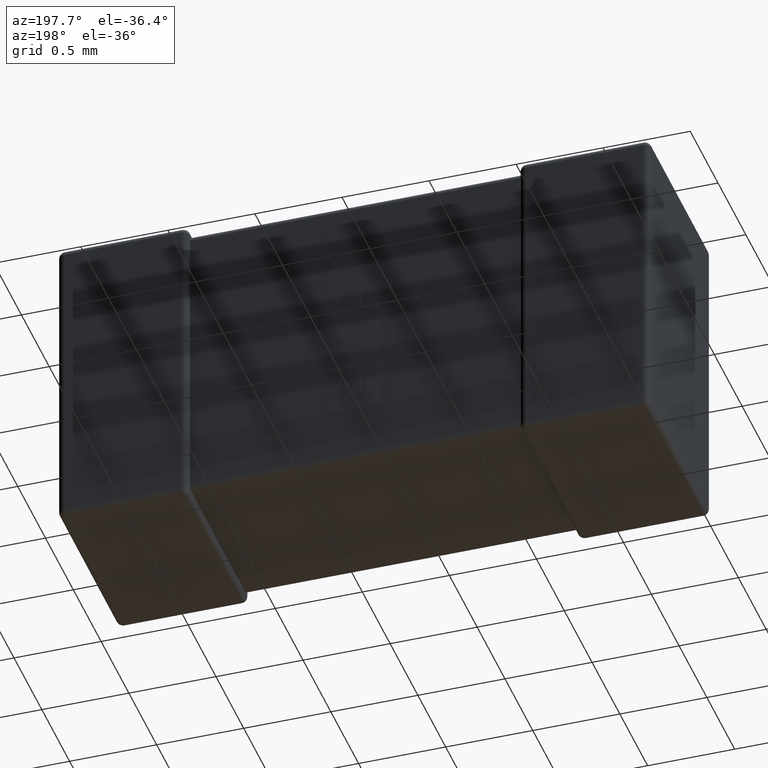
[diagram: clean part render]
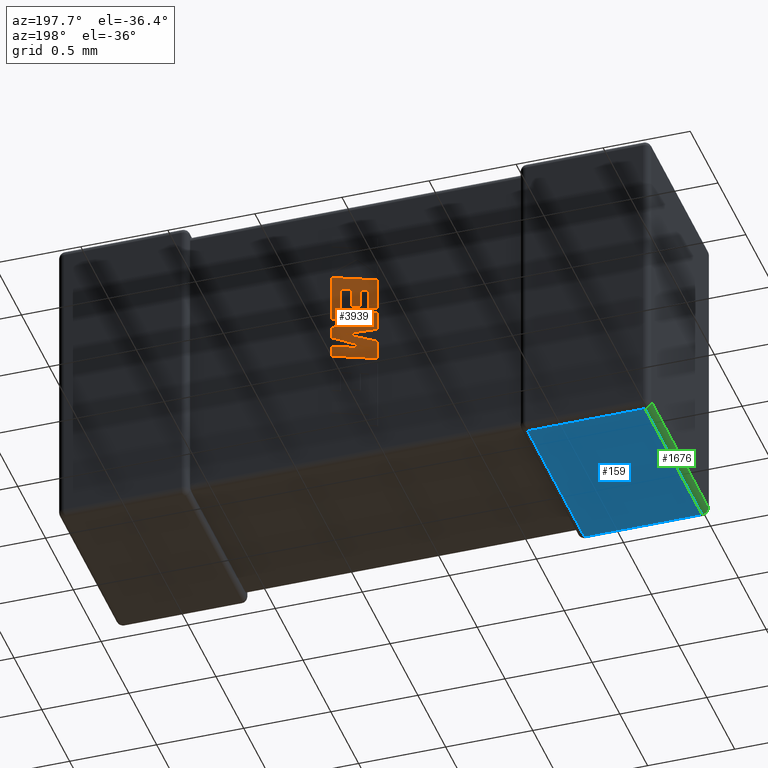
[diagram: same view with three faces highlighted in distinct colors, each labeled with its STEP entity id]
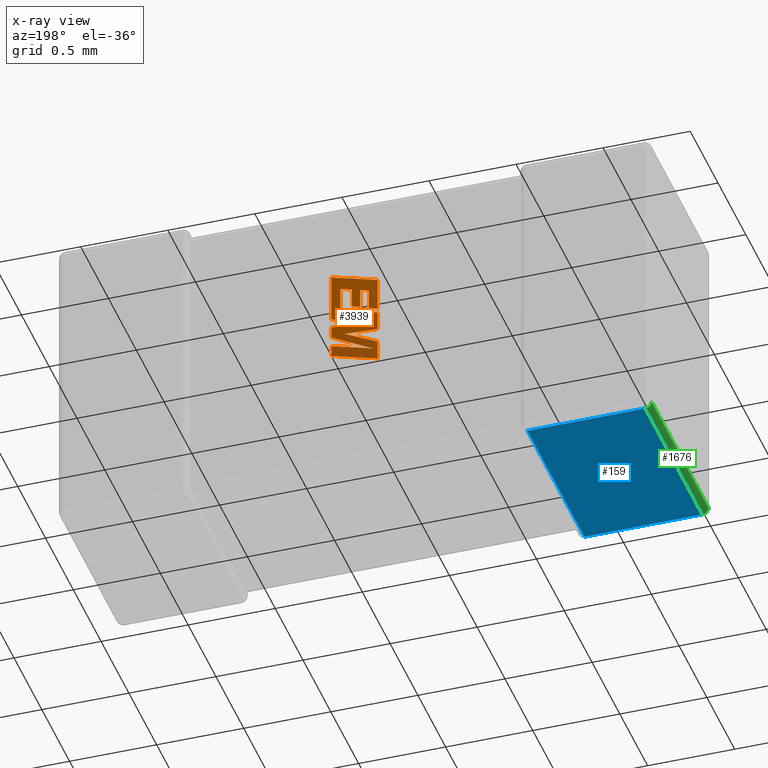
[diagram: x-ray of the same camera — body ghosted, the three highlighted faces saturated]
A machine part, auxiliary view with three faces highlighted in distinct colors.
The next image is the same camera in x-ray (body ghosted, the three faces saturated) — at least one of them is partly hidden behind the body in this view.
Their STEP definitions:

[orange] entity #3939 — the highlighted planar face has unit normal (0, -1, 0).
#14 = CARTESIAN_POINT ( 'NONE',  ( 1.719887564039056294, 1.067560000000000064, -0.7311922197814223479 ) ) ;
#16 = DIRECTION ( 'NONE',  ( -0.9611638845408969622, 0.000000000000000000, -0.2759782365590690012 ) ) ;
#20 = EDGE_CURVE ( 'NONE', #358, #1426, #2154, .T. ) ;
#45 = VECTOR ( 'NONE', #3267, 1000.000000000000000 ) ;
#165 = DIRECTION ( 'NONE',  ( 0.000000000000000000, 0.000000000000000000, 1.000000000000000000 ) ) ;
#175 = ORIENTED_EDGE ( 'NONE', *, *, #2184, .T. ) ;
#211 = VERTEX_POINT ( 'NONE', #1473 ) ;
#218 = ORIENTED_EDGE ( 'NONE', *, *, #2321, .T. ) ;
#226 = DIRECTION ( 'NONE',  ( 0.9610029908221285888, 0.000000000000000000, 0.2765379750249931656 ) ) ;
#265 = CARTESIAN_POINT ( 'NONE',  ( 0.06016339829042452458, 1.067560000000000064, 0.004072901265455560610 ) ) ;
#288 = VERTEX_POINT ( 'NONE', #2085 ) ;
#333 = ORIENTED_EDGE ( 'NONE', *, *, #2672, .T. ) ;
#354 = VECTOR ( 'NONE', #4074, 1000.000000000000000 ) ;
#358 = VERTEX_POINT ( 'NONE', #4678 ) ;
#409 = CARTESIAN_POINT ( 'NONE',  ( 1.571380152701791211, 1.067560000000000064, -0.9198648371720272721 ) ) ;
#416 = CARTESIAN_POINT ( 'NONE',  ( 1.600415905431753272, 1.067560000000000064, -0.8618591413881407926 ) ) ;
#462 = VECTOR ( 'NONE', #2623, 1000.000000000000000 ) ;
#494 = LINE ( 'NONE', #3383, #3733 ) ;
#495 = VECTOR ( 'NONE', #1796, 1000.000000000000114 ) ;
#515 = LINE ( 'NONE', #4171, #2479 ) ;
#516 = CARTESIAN_POINT ( 'NONE',  ( 1.836000000000004517, 1.067560000000000064, -1.043430154215027272 ) ) ;
#560 = EDGE_CURVE ( 'NONE', #877, #2885, #2396, .T. ) ;
#591 = CARTESIAN_POINT ( 'NONE',  ( 1.785655913532542716, 1.067560000000000064, -0.7455817617719676660 ) ) ;
#603 = CARTESIAN_POINT ( 'NONE',  ( 1.760427971559525018, 1.067560000000000064, -0.9096883145256312586 ) ) ;
#710 = CARTESIAN_POINT ( 'NONE',  ( 1.571380152701791211, 1.067560000000000064, -0.8071726061217919801 ) ) ;
#721 = VECTOR ( 'NONE', #4674, 1000.000000000000000 ) ;
#742 = EDGE_CURVE ( 'NONE', #890, #3204, #2293, .T. ) ;
#751 = VECTOR ( 'NONE', #1371, 1000.000000000000000 ) ;
#759 = CARTESIAN_POINT ( 'NONE',  ( 1.836000000000004517, 1.067560000000000064, -0.8486539768188343658 ) ) ;
#877 = VERTEX_POINT ( 'NONE', #4547 ) ;
#890 = VERTEX_POINT ( 'NONE', #4569 ) ;
#900 = CARTESIAN_POINT ( 'NONE',  ( 1.571380152701791211, 1.067560000000000064, -1.003449846206255325 ) ) ;
#908 = LINE ( 'NONE', #1638, #462 ) ;
#988 = VERTEX_POINT ( 'NONE', #14 ) ;
#994 = ORIENTED_EDGE ( 'NONE', *, *, #3592, .T. ) ;
#1040 = VECTOR ( 'NONE', #4285, 1000.000000000000000 ) ;
#1062 = FACE_OUTER_BOUND ( 'NONE', #4273, .T. ) ;
#1084 = CARTESIAN_POINT ( 'NONE',  ( 1.836000000000004517, 1.067560000000000064, -0.8486539768188343658 ) ) ;
#1093 = CARTESIAN_POINT ( 'NONE',  ( 1.785655913532542716, 1.067560000000000064, -0.5988911467783583076 ) ) ;
#1166 = EDGE_CURVE ( 'NONE', #4043, #2294, #1251, .T. ) ;
#1200 = ORIENTED_EDGE ( 'NONE', *, *, #1870, .T. ) ;
#1204 = LINE ( 'NONE', #3715, #1735 ) ;
#1244 = DIRECTION ( 'NONE',  ( 0.8958676361826827250, 0.000000000000000000, 0.4443210308329466618 ) ) ;
#1251 = LINE ( 'NONE', #1276, #4164 ) ;
#1276 = CARTESIAN_POINT ( 'NONE',  ( 1.600415905431753272, 1.067560000000000064, -0.8618591413881407926 ) ) ;
#1296 = ORIENTED_EDGE ( 'NONE', *, *, #1782, .T. ) ;
#1313 = DIRECTION ( 'NONE',  ( 0.000000000000000000, -1.000000000000000000, 0.000000000000000000 ) ) ;
#1318 = VERTEX_POINT ( 'NONE', #1703 ) ;
#1330 = VERTEX_POINT ( 'NONE', #3681 ) ;
#1334 = DIRECTION ( 'NONE',  ( 0.000000000000000000, 0.000000000000000000, -1.000000000000000000 ) ) ;
#1357 = DIRECTION ( 'NONE',  ( -0.8843386665637650301, 0.000000000000000000, -0.4668459304955137057 ) ) ;
#1371 = DIRECTION ( 'NONE',  ( 0.000000000000000000, 0.000000000000000000, 1.000000000000000000 ) ) ;
#1388 = ORIENTED_EDGE ( 'NONE', *, *, #1527, .T. ) ;
#1426 = VERTEX_POINT ( 'NONE', #3458 ) ;
#1473 = CARTESIAN_POINT ( 'NONE',  ( 1.571380152701791211, 1.067560000000000064, -0.7807783690678609112 ) ) ;
#1505 = LINE ( 'NONE', #1552, #3194 ) ;
#1526 = VECTOR ( 'NONE', #3611, 1000.000000000000000 ) ;
#1527 = EDGE_CURVE ( 'NONE', #1426, #2893, #3225, .T. ) ;
#1552 = CARTESIAN_POINT ( 'NONE',  ( 1.621749181899789116, 1.067560000000000064, -0.7664725059161028309 ) ) ;
#1558 = CARTESIAN_POINT ( 'NONE',  ( 1.836000000000004517, 1.067560000000000064, -0.7942160640461678467 ) ) ;
#1605 = EDGE_CURVE ( 'NONE', #2227, #1786, #494, .T. ) ;
#1612 = LINE ( 'NONE', #900, #2935 ) ;
#1629 = VERTEX_POINT ( 'NONE', #1558 ) ;
#1638 = CARTESIAN_POINT ( 'NONE',  ( 1.836000000000004517, 1.067560000000000064, -0.9761861605695812960 ) ) ;
#1703 = CARTESIAN_POINT ( 'NONE',  ( 1.836000000000004517, 1.067560000000000064, -0.5091391542831160688 ) ) ;
#1735 = VECTOR ( 'NONE', #1357, 1000.000000000000000 ) ;
#1757 = ORIENTED_EDGE ( 'NONE', *, *, #20, .T. ) ;
#1782 = EDGE_CURVE ( 'NONE', #1629, #4043, #3620, .T. ) ;
#1786 = VERTEX_POINT ( 'NONE', #3901 ) ;
#1796 = DIRECTION ( 'NONE',  ( 0.9610853065513847993, 0.000000000000000000, 0.2762517575166369421 ) ) ;
#1842 = EDGE_CURVE ( 'NONE', #4154, #988, #2992, .T. ) ;
#1870 = EDGE_CURVE ( 'NONE', #2562, #211, #1505, .T. ) ;
#1882 = DIRECTION ( 'NONE',  ( -0.9619530280415479195, 0.000000000000000000, -0.2732148821746301914 ) ) ;
#1891 = VECTOR ( 'NONE', #3579, 999.9999999999998863 ) ;
#1930 = CARTESIAN_POINT ( 'NONE',  ( 1.621749181899789116, 1.067560000000000064, -0.6459089993731549351 ) ) ;
#1938 = LINE ( 'NONE', #3770, #4317 ) ;
#1947 = CARTESIAN_POINT ( 'NONE',  ( 1.670968431657682274, 1.067560000000000064, -0.6315870441368872656 ) ) ;
#1954 = DIRECTION ( 'NONE',  ( -0.9610674221107078363, 0.000000000000000000, -0.2763139702539094134 ) ) ;
#1989 = CARTESIAN_POINT ( 'NONE',  ( 1.719887564039056294, 1.067560000000000064, -0.6176303792195445563 ) ) ;
#2027 = CARTESIAN_POINT ( 'NONE',  ( 1.836000000000004517, 1.067560000000000064, -0.9191992616065969290 ) ) ;
#2085 = CARTESIAN_POINT ( 'NONE',  ( 1.599281413472585678, 1.067560000000000064, -1.044163953269784839 ) ) ;
#2105 = ORIENTED_EDGE ( 'NONE', *, *, #3902, .T. ) ;
#2143 = LINE ( 'NONE', #710, #495 ) ;
#2154 = LINE ( 'NONE', #603, #1891 ) ;
#2181 = ORIENTED_EDGE ( 'NONE', *, *, #3848, .T. ) ;
#2184 = EDGE_CURVE ( 'NONE', #2885, #2692, #2215, .T. ) ;
#2193 = CARTESIAN_POINT ( 'NONE',  ( 1.621749181899789116, 1.067560000000000064, -0.7664725059161028309 ) ) ;
#2215 = LINE ( 'NONE', #3712, #2966 ) ;
#2227 = VERTEX_POINT ( 'NONE', #591 ) ;
#2254 = CARTESIAN_POINT ( 'NONE',  ( 1.571380152701791211, 1.067560000000000064, -1.119510311478468134 ) ) ;
#2293 = LINE ( 'NONE', #516, #4604 ) ;
#2294 = VERTEX_POINT ( 'NONE', #1084 ) ;
#2300 = EDGE_CURVE ( 'NONE', #2893, #2227, #2143, .T. ) ;
#2321 = EDGE_CURVE ( 'NONE', #3204, #3064, #3512, .T. ) ;
#2396 = LINE ( 'NONE', #4600, #751 ) ;
#2460 = EDGE_CURVE ( 'NONE', #211, #3095, #3522, .T. ) ;
#2464 = CARTESIAN_POINT ( 'NONE',  ( 1.836000000000004517, 1.067560000000000064, -0.7942160640461678467 ) ) ;
#2479 = VECTOR ( 'NONE', #226, 1000.000000000000114 ) ;
#2538 = ORIENTED_EDGE ( 'NONE', *, *, #2300, .T. ) ;
#2549 = EDGE_CURVE ( 'NONE', #1786, #4154, #2862, .T. ) ;
#2562 = VERTEX_POINT ( 'NONE', #2193 ) ;
#2603 = DIRECTION ( 'NONE',  ( 0.9611542233438712390, 0.000000000000000000, 0.2760118818968482213 ) ) ;
#2623 = DIRECTION ( 'NONE',  ( 0.000000000000000000, 0.000000000000000000, -1.000000000000000000 ) ) ;
#2672 = EDGE_CURVE ( 'NONE', #288, #1330, #3672, .T. ) ;
#2692 = VERTEX_POINT ( 'NONE', #1930 ) ;
#2729 = DIRECTION ( 'NONE',  ( 0.000000000000000000, 0.000000000000000000, -1.000000000000000000 ) ) ;
#2766 = EDGE_CURVE ( 'NONE', #1318, #1629, #2975, .T. ) ;
#2824 = LINE ( 'NONE', #3079, #3075 ) ;
#2862 = LINE ( 'NONE', #1093, #45 ) ;
#2870 = CARTESIAN_POINT ( 'NONE',  ( 1.571380152701791211, 1.067560000000000064, -1.119510311478468134 ) ) ;
#2885 = VERTEX_POINT ( 'NONE', #1947 ) ;
#2893 = VERTEX_POINT ( 'NONE', #3058 ) ;
#2895 = VECTOR ( 'NONE', #4494, 1000.000000000000000 ) ;
#2935 = VECTOR ( 'NONE', #1244, 1000.000000000000114 ) ;
#2966 = VECTOR ( 'NONE', #3353, 1000.000000000000114 ) ;
#2967 = ORIENTED_EDGE ( 'NONE', *, *, #1166, .T. ) ;
#2974 = DIRECTION ( 'NONE',  ( 0.000000000000000000, 0.000000000000000000, -1.000000000000000000 ) ) ;
#2975 = LINE ( 'NONE', #4127, #354 ) ;
#2992 = LINE ( 'NONE', #4390, #4032 ) ;
#3058 = CARTESIAN_POINT ( 'NONE',  ( 1.571380152701791211, 1.067560000000000064, -0.8071726061217919801 ) ) ;
#3061 = ORIENTED_EDGE ( 'NONE', *, *, #3993, .T. ) ;
#3064 = VERTEX_POINT ( 'NONE', #4663 ) ;
#3075 = VECTOR ( 'NONE', #2729, 1000.000000000000000 ) ;
#3079 = CARTESIAN_POINT ( 'NONE',  ( 1.621749181899789116, 1.067560000000000064, -0.6459089993731549351 ) ) ;
#3095 = VERTEX_POINT ( 'NONE', #3257 ) ;
#3194 = VECTOR ( 'NONE', #1882, 999.9999999999998863 ) ;
#3204 = VERTEX_POINT ( 'NONE', #2254 ) ;
#3225 = LINE ( 'NONE', #409, #721 ) ;
#3257 = CARTESIAN_POINT ( 'NONE',  ( 1.571380152701791211, 1.067560000000000064, -0.5852860939098785131 ) ) ;
#3267 = DIRECTION ( 'NONE',  ( -0.9617234872620624708, 0.000000000000000000, -0.2740217765953968376 ) ) ;
#3353 = DIRECTION ( 'NONE',  ( -0.9601763114327565019, 0.000000000000000000, -0.2793947940878392933 ) ) ;
#3383 = CARTESIAN_POINT ( 'NONE',  ( 1.785655913532542716, 1.067560000000000064, -0.7455817617719676660 ) ) ;
#3396 = AXIS2_PLACEMENT_3D ( 'NONE', #265, #1313, #1334 ) ;
#3424 = DIRECTION ( 'NONE',  ( 0.9984327301130250243, 0.000000000000000000, 0.05596501978067341954 ) ) ;
#3457 = ORIENTED_EDGE ( 'NONE', *, *, #2766, .T. ) ;
#3458 = CARTESIAN_POINT ( 'NONE',  ( 1.571380152701791211, 1.067560000000000064, -0.9198648371720272721 ) ) ;
#3485 = LINE ( 'NONE', #759, #1526 ) ;
#3499 = ORIENTED_EDGE ( 'NONE', *, *, #2549, .T. ) ;
#3512 = LINE ( 'NONE', #2870, #1040 ) ;
#3522 = LINE ( 'NONE', #4274, #2895 ) ;
#3579 = DIRECTION ( 'NONE',  ( -0.9985542843760949472, 0.000000000000000000, -0.05375259206908061804 ) ) ;
#3592 = EDGE_CURVE ( 'NONE', #3095, #1318, #515, .T. ) ;
#3611 = DIRECTION ( 'NONE',  ( 0.000000000000000000, 0.000000000000000000, -1.000000000000000000 ) ) ;
#3620 = LINE ( 'NONE', #2464, #3724 ) ;
#3672 = LINE ( 'NONE', #3719, #3885 ) ;
#3681 = CARTESIAN_POINT ( 'NONE',  ( 1.836000000000004517, 1.067560000000000064, -0.9761861605695812960 ) ) ;
#3712 = CARTESIAN_POINT ( 'NONE',  ( 1.670968431657682274, 1.067560000000000064, -0.6315870441368872656 ) ) ;
#3715 = CARTESIAN_POINT ( 'NONE',  ( 1.836000000000004517, 1.067560000000000064, -0.9191992616065969290 ) ) ;
#3719 = CARTESIAN_POINT ( 'NONE',  ( 1.599281413472585678, 1.067560000000000064, -1.044163953269784839 ) ) ;
#3724 = VECTOR ( 'NONE', #16, 1000.000000000000227 ) ;
#3733 = VECTOR ( 'NONE', #165, 1000.000000000000000 ) ;
#3770 = CARTESIAN_POINT ( 'NONE',  ( 1.719887564039056294, 1.067560000000000064, -0.7311922197814223479 ) ) ;
#3816 = ORIENTED_EDGE ( 'NONE', *, *, #4490, .T. ) ;
#3845 = ORIENTED_EDGE ( 'NONE', *, *, #742, .T. ) ;
#3848 = EDGE_CURVE ( 'NONE', #1330, #890, #908, .T. ) ;
#3867 = ORIENTED_EDGE ( 'NONE', *, *, #1842, .T. ) ;
#3885 = VECTOR ( 'NONE', #2603, 1000.000000000000114 ) ;
#3901 = CARTESIAN_POINT ( 'NONE',  ( 1.785655913532542716, 1.067560000000000064, -0.5988911467783583076 ) ) ;
#3902 = EDGE_CURVE ( 'NONE', #4623, #288, #1204, .T. ) ;
#3939 = ADVANCED_FACE ( 'NONE', ( #1062 ), #4260, .F. ) ;
#3993 = EDGE_CURVE ( 'NONE', #2692, #2562, #2824, .T. ) ;
#4006 = EDGE_CURVE ( 'NONE', #2294, #4623, #3485, .T. ) ;
#4023 = ORIENTED_EDGE ( 'NONE', *, *, #4006, .T. ) ;
#4032 = VECTOR ( 'NONE', #2974, 1000.000000000000000 ) ;
#4043 = VERTEX_POINT ( 'NONE', #416 ) ;
#4074 = DIRECTION ( 'NONE',  ( 0.000000000000000000, 0.000000000000000000, -1.000000000000000000 ) ) ;
#4127 = CARTESIAN_POINT ( 'NONE',  ( 1.836000000000004517, 1.067560000000000064, -0.5091391542831160688 ) ) ;
#4131 = ORIENTED_EDGE ( 'NONE', *, *, #1605, .T. ) ;
#4154 = VERTEX_POINT ( 'NONE', #1989 ) ;
#4164 = VECTOR ( 'NONE', #3424, 1000.000000000000114 ) ;
#4171 = CARTESIAN_POINT ( 'NONE',  ( 1.571380152701791211, 1.067560000000000064, -0.5852860939098785131 ) ) ;
#4196 = EDGE_CURVE ( 'NONE', #3064, #358, #1612, .T. ) ;
#4260 = PLANE ( 'NONE',  #3396 ) ;
#4273 = EDGE_LOOP ( 'NONE', ( #218, #4422, #1757, #1388, #2538, #4131, #3499, #3867, #3816, #4667, #175, #3061, #1200, #4481, #994, #3457, #1296, #2967, #4023, #2105, #333, #2181, #3845 ) ) ;
#4274 = CARTESIAN_POINT ( 'NONE',  ( 1.571380152701791211, 1.067560000000000064, -0.7807783690678609112 ) ) ;
#4285 = DIRECTION ( 'NONE',  ( 0.000000000000000000, 0.000000000000000000, 1.000000000000000000 ) ) ;
#4317 = VECTOR ( 'NONE', #4400, 1000.000000000000227 ) ;
#4390 = CARTESIAN_POINT ( 'NONE',  ( 1.719887564039056294, 1.067560000000000064, -0.6176303792195445563 ) ) ;
#4400 = DIRECTION ( 'NONE',  ( -0.9615454294334448981, 0.000000000000000000, -0.2746459304917005517 ) ) ;
#4422 = ORIENTED_EDGE ( 'NONE', *, *, #4196, .T. ) ;
#4481 = ORIENTED_EDGE ( 'NONE', *, *, #2460, .T. ) ;
#4490 = EDGE_CURVE ( 'NONE', #988, #877, #1938, .T. ) ;
#4494 = DIRECTION ( 'NONE',  ( 0.000000000000000000, 0.000000000000000000, 1.000000000000000000 ) ) ;
#4547 = CARTESIAN_POINT ( 'NONE',  ( 1.670968431657682274, 1.067560000000000064, -0.7451649767832891902 ) ) ;
#4569 = CARTESIAN_POINT ( 'NONE',  ( 1.836000000000004517, 1.067560000000000064, -1.043430154215027272 ) ) ;
#4600 = CARTESIAN_POINT ( 'NONE',  ( 1.670968431657682274, 1.067560000000000064, -0.7451649767832891902 ) ) ;
#4604 = VECTOR ( 'NONE', #1954, 1000.000000000000227 ) ;
#4623 = VERTEX_POINT ( 'NONE', #2027 ) ;
#4663 = CARTESIAN_POINT ( 'NONE',  ( 1.571380152701791211, 1.067560000000000064, -1.003449846206255325 ) ) ;
#4667 = ORIENTED_EDGE ( 'NONE', *, *, #560, .T. ) ;
#4674 = DIRECTION ( 'NONE',  ( 0.000000000000000000, 0.000000000000000000, 1.000000000000000000 ) ) ;
#4678 = CARTESIAN_POINT ( 'NONE',  ( 1.760427971559525018, 1.067560000000000064, -0.9096883145256312586 ) ) ;

[blue] entity #159 — the highlighted planar face has unit normal (0, 0, 1).
#3 = LINE ( 'NONE', #2871, #727 ) ;
#159 = ADVANCED_FACE ( 'NONE', ( #4287 ), #1752, .F. ) ;
#404 = CARTESIAN_POINT ( 'NONE',  ( 0.03744000000000012596, 1.100000000000000089, -1.800000000000000044 ) ) ;
#727 = VECTOR ( 'NONE', #2985, 1000.000000000000000 ) ;
#749 = LINE ( 'NONE', #1765, #797 ) ;
#797 = VECTOR ( 'NONE', #3607, 1000.000000000000000 ) ;
#872 = VERTEX_POINT ( 'NONE', #1280 ) ;
#906 = VECTOR ( 'NONE', #3697, 1000.000000000000000 ) ;
#931 = LINE ( 'NONE', #1893, #952 ) ;
#934 = ORIENTED_EDGE ( 'NONE', *, *, #1354, .T. ) ;
#952 = VECTOR ( 'NONE', #3707, 1000.000000000000000 ) ;
#977 = ORIENTED_EDGE ( 'NONE', *, *, #3469, .T. ) ;
#987 = AXIS2_PLACEMENT_3D ( 'NONE', #4241, #4638, #1405 ) ;
#1150 = CARTESIAN_POINT ( 'NONE',  ( 0.7125599999999996381, 1.062560000000000171, -1.800000000000000044 ) ) ;
#1280 = CARTESIAN_POINT ( 'NONE',  ( 0.03744000000000012596, 0.03744000000000000106, -1.800000000000000044 ) ) ;
#1354 = EDGE_CURVE ( 'NONE', #1625, #872, #931, .T. ) ;
#1405 = DIRECTION ( 'NONE',  ( 1.000000000000000000, 0.000000000000000000, -0.000000000000000000 ) ) ;
#1576 = EDGE_CURVE ( 'NONE', #4125, #1625, #749, .T. ) ;
#1625 = VERTEX_POINT ( 'NONE', #1936 ) ;
#1752 = PLANE ( 'NONE',  #987 ) ;
#1765 = CARTESIAN_POINT ( 'NONE',  ( 0.7125600000000027467, -7.782393927415725510E-15, -1.800000000000000044 ) ) ;
#1893 = CARTESIAN_POINT ( 'NONE',  ( 3.400000000000000355, 0.03744000000000000106, -1.800000000000000044 ) ) ;
#1936 = CARTESIAN_POINT ( 'NONE',  ( 0.7125600000000026357, 0.03744000000000000106, -1.800000000000000044 ) ) ;
#1975 = ORIENTED_EDGE ( 'NONE', *, *, #1576, .T. ) ;
#2555 = EDGE_LOOP ( 'NONE', ( #1975, #934, #977, #2879 ) ) ;
#2871 = CARTESIAN_POINT ( 'NONE',  ( 3.400000000000000355, 1.062560000000000171, -1.800000000000000044 ) ) ;
#2879 = ORIENTED_EDGE ( 'NONE', *, *, #3178, .T. ) ;
#2985 = DIRECTION ( 'NONE',  ( 1.000000000000000000, -0.000000000000000000, -0.000000000000000000 ) ) ;
#3178 = EDGE_CURVE ( 'NONE', #4258, #4125, #3, .T. ) ;
#3469 = EDGE_CURVE ( 'NONE', #872, #4258, #4323, .T. ) ;
#3607 = DIRECTION ( 'NONE',  ( 2.895839135912144377E-15, -1.000000000000000000, 0.000000000000000000 ) ) ;
#3697 = DIRECTION ( 'NONE',  ( 0.000000000000000000, 1.000000000000000000, -0.000000000000000000 ) ) ;
#3707 = DIRECTION ( 'NONE',  ( -1.000000000000000000, -0.000000000000000000, 0.000000000000000000 ) ) ;
#3799 = CARTESIAN_POINT ( 'NONE',  ( 0.03744000000000012596, 1.062560000000000171, -1.800000000000000044 ) ) ;
#4125 = VERTEX_POINT ( 'NONE', #1150 ) ;
#4241 = CARTESIAN_POINT ( 'NONE',  ( 3.400000000000000355, 0.000000000000000000, -1.800000000000000044 ) ) ;
#4258 = VERTEX_POINT ( 'NONE', #3799 ) ;
#4287 = FACE_OUTER_BOUND ( 'NONE', #2555, .T. ) ;
#4323 = LINE ( 'NONE', #404, #906 ) ;
#4638 = DIRECTION ( 'NONE',  ( 0.000000000000000000, 0.000000000000000000, 1.000000000000000000 ) ) ;

[green] entity #1676 — the highlighted cylindrical surface (edge-blend (fillet) strip) has radius 0.0374 mm, axis along (0, -1, 0).
#404 = CARTESIAN_POINT ( 'NONE',  ( 0.03744000000000012596, 1.100000000000000089, -1.800000000000000044 ) ) ;
#519 = CYLINDRICAL_SURFACE ( 'NONE', #3039, 0.03743999999999991085 ) ;
#533 = ORIENTED_EDGE ( 'NONE', *, *, #3147, .F. ) ;
#647 = CARTESIAN_POINT ( 'NONE',  ( 0.03744000000000012596, 1.062560000000000171, -1.762560000000000127 ) ) ;
#758 = CARTESIAN_POINT ( 'NONE',  ( 0.000000000000000000, 0.000000000000000000, -1.762560000000000127 ) ) ;
#872 = VERTEX_POINT ( 'NONE', #1280 ) ;
#906 = VECTOR ( 'NONE', #3697, 1000.000000000000000 ) ;
#944 = CIRCLE ( 'NONE', #3872, 0.03743999999999991085 ) ;
#1169 = FACE_OUTER_BOUND ( 'NONE', #2601, .T. ) ;
#1222 = CIRCLE ( 'NONE', #1293, 0.03743999999999991085 ) ;
#1280 = CARTESIAN_POINT ( 'NONE',  ( 0.03744000000000012596, 0.03744000000000000106, -1.800000000000000044 ) ) ;
#1293 = AXIS2_PLACEMENT_3D ( 'NONE', #1907, #3306, #3597 ) ;
#1676 = ADVANCED_FACE ( 'NONE', ( #1169 ), #519, .T. ) ;
#1680 = EDGE_CURVE ( 'NONE', #1852, #4258, #944, .T. ) ;
#1852 = VERTEX_POINT ( 'NONE', #1861 ) ;
#1861 = CARTESIAN_POINT ( 'NONE',  ( 0.000000000000000000, 1.062560000000000171, -1.762560000000000127 ) ) ;
#1907 = CARTESIAN_POINT ( 'NONE',  ( 0.03744000000000000106, 0.03744000000000000106, -1.762560000000000127 ) ) ;
#2050 = DIRECTION ( 'NONE',  ( 0.000000000000000000, -1.000000000000000000, 0.000000000000000000 ) ) ;
#2172 = VECTOR ( 'NONE', #2212, 1000.000000000000000 ) ;
#2212 = DIRECTION ( 'NONE',  ( -0.000000000000000000, -1.000000000000000000, -0.000000000000000000 ) ) ;
#2262 = CARTESIAN_POINT ( 'NONE',  ( 0.000000000000000000, 0.03744000000000000106, -1.762560000000000127 ) ) ;
#2504 = ORIENTED_EDGE ( 'NONE', *, *, #1680, .T. ) ;
#2601 = EDGE_LOOP ( 'NONE', ( #2504, #4531, #3256, #533 ) ) ;
#2624 = VERTEX_POINT ( 'NONE', #2262 ) ;
#2739 = DIRECTION ( 'NONE',  ( 0.000000000000000000, 0.000000000000000000, 1.000000000000000000 ) ) ;
#3039 = AXIS2_PLACEMENT_3D ( 'NONE', #4174, #2050, #3520 ) ;
#3090 = DIRECTION ( 'NONE',  ( -0.000000000000000000, -1.000000000000000000, -0.000000000000000000 ) ) ;
#3147 = EDGE_CURVE ( 'NONE', #1852, #2624, #3971, .T. ) ;
#3256 = ORIENTED_EDGE ( 'NONE', *, *, #3740, .F. ) ;
#3306 = DIRECTION ( 'NONE',  ( -0.000000000000000000, -1.000000000000000000, -0.000000000000000000 ) ) ;
#3469 = EDGE_CURVE ( 'NONE', #872, #4258, #4323, .T. ) ;
#3520 = DIRECTION ( 'NONE',  ( 0.000000000000000000, 0.000000000000000000, -1.000000000000000000 ) ) ;
#3597 = DIRECTION ( 'NONE',  ( 0.000000000000000000, 0.000000000000000000, -1.000000000000000000 ) ) ;
#3697 = DIRECTION ( 'NONE',  ( 0.000000000000000000, 1.000000000000000000, -0.000000000000000000 ) ) ;
#3740 = EDGE_CURVE ( 'NONE', #2624, #872, #1222, .T. ) ;
#3799 = CARTESIAN_POINT ( 'NONE',  ( 0.03744000000000012596, 1.062560000000000171, -1.800000000000000044 ) ) ;
#3872 = AXIS2_PLACEMENT_3D ( 'NONE', #647, #3090, #2739 ) ;
#3971 = LINE ( 'NONE', #758, #2172 ) ;
#4174 = CARTESIAN_POINT ( 'NONE',  ( 0.03744000000000012596, 0.000000000000000000, -1.762560000000000127 ) ) ;
#4258 = VERTEX_POINT ( 'NONE', #3799 ) ;
#4323 = LINE ( 'NONE', #404, #906 ) ;
#4531 = ORIENTED_EDGE ( 'NONE', *, *, #3469, .F. ) ;